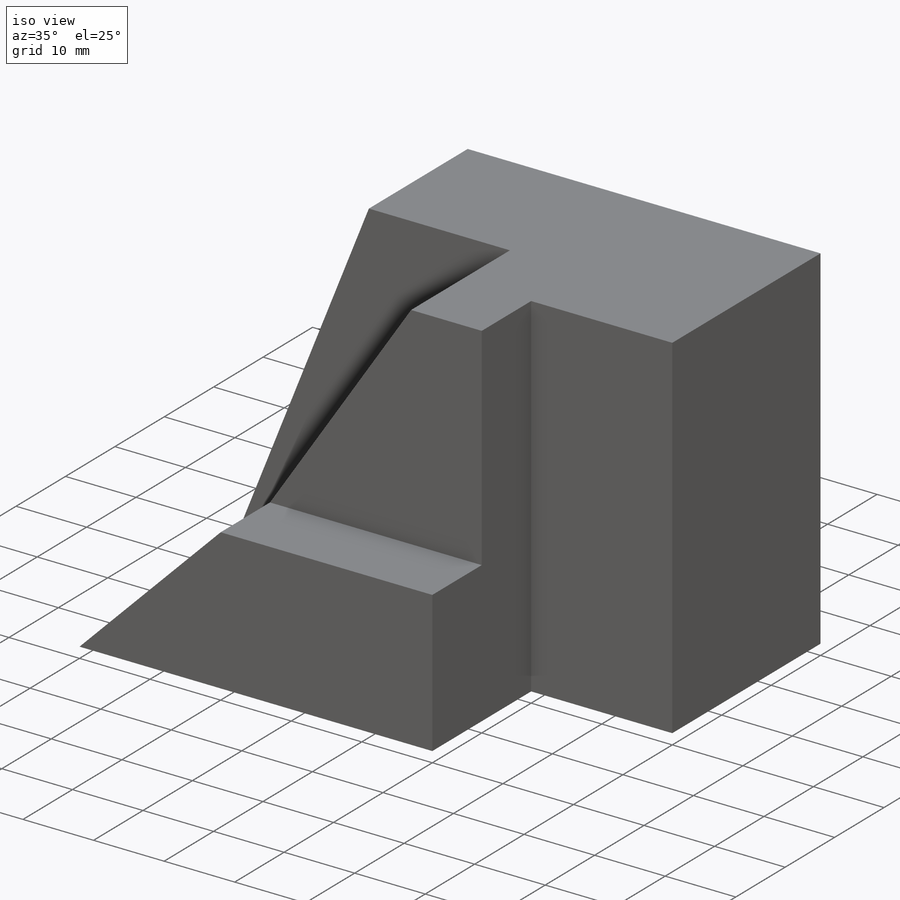
[diagram: iso view]
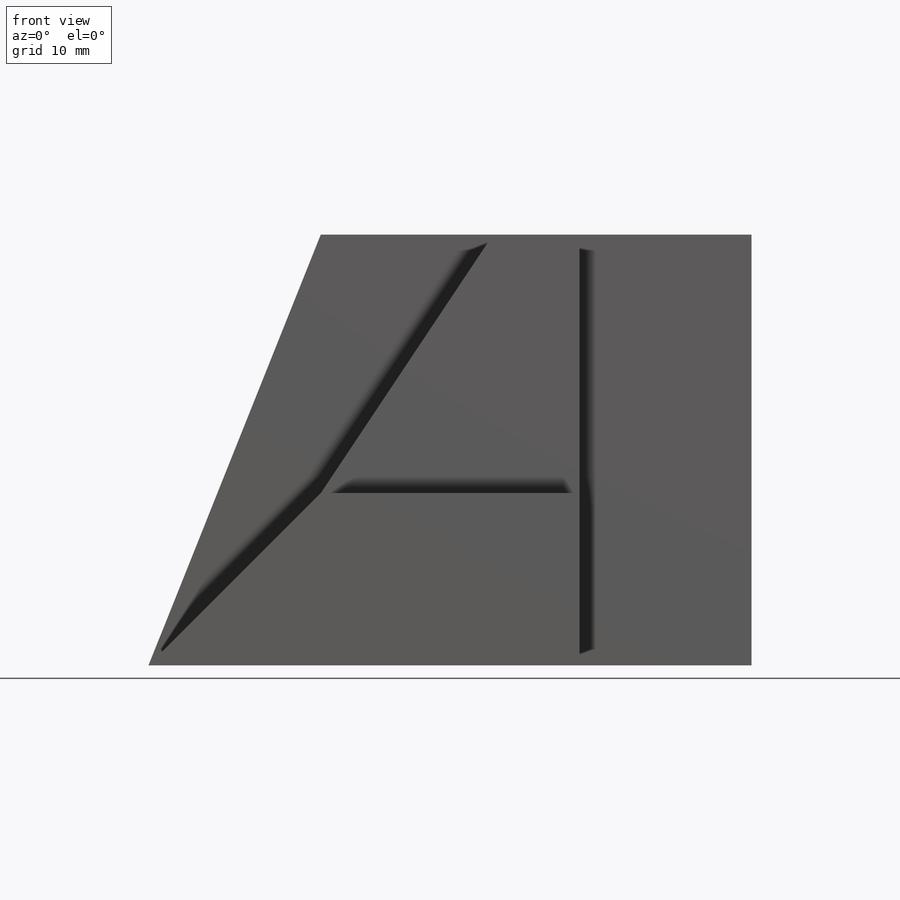
[diagram: front view]
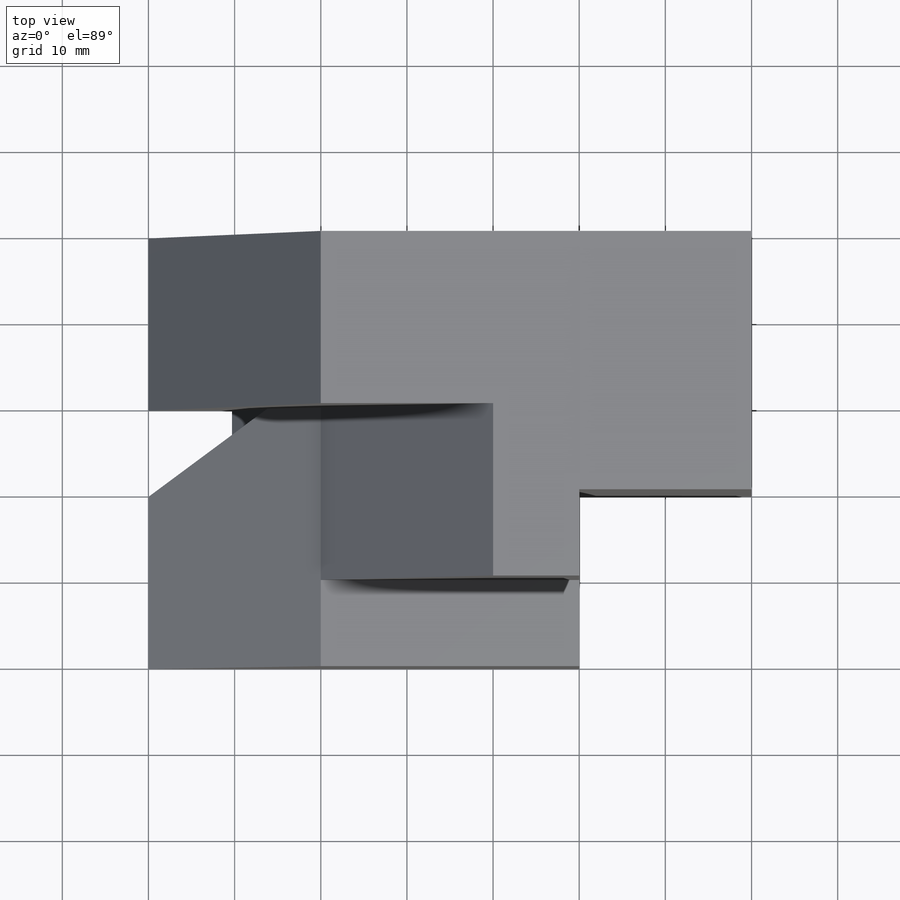
[diagram: top view]
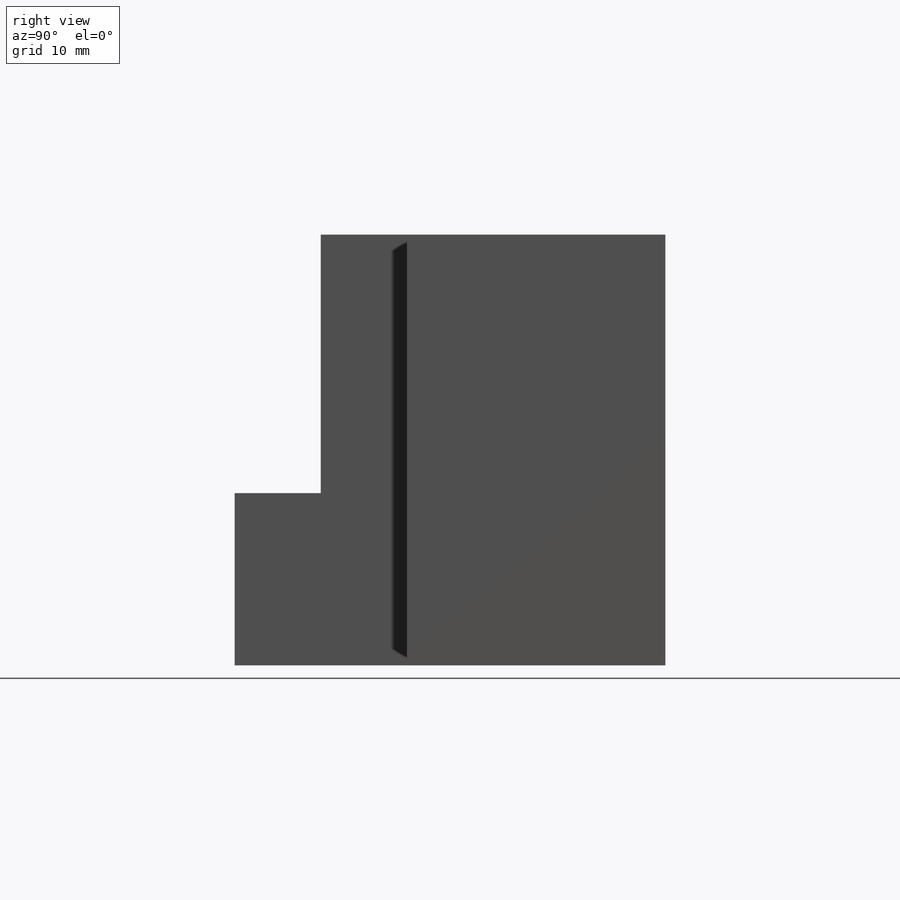
[diagram: right view]
SOLIDWORKS PART (.sldprt)
format: sldprt  version: not decoded by parser v0  size: 304,640 bytes
history: native  units: mm
features: sketch x14, cut_extrude x11, extrude x3, material x1, plane x1 (+13 scaffold rows collapsed)
feature tree (43):
  scaffold x13  (default folders/planes/origin — collapsed)
  material  "Material <not specified>"
  sketch  "Sketch1"  dims[c1.D1=~62.69285mm c1.D2=~85.471925mm c2.D1=70.0mm c2.D2=50.0mm]
  extrude  "Boss-Extrude1"  Depth=50mm
  sketch  "Sketch2"  dims[D1=20.0mm]
  cut_extrude  "Cut-Extrude1"  Depth=50mm
  sketch  "Sketch3"  dims[c1.D1=~29.805159mm c1.D2=~12.682404mm c2.D1=10.0mm c2.D2=30.0mm]
  cut_extrude  "Cut-Extrude2"  Depth=121mm
  sketch  "Sketch4"  dims[c1.D1=~24.316726mm c1.D2=~28.565243mm c2.D1=20.0mm c2.D2=20.0mm]
  cut_extrude  "Cut-Extrude3"  Depth=121mm
  sketch  "Sketch5"  dims[D1=20.0mm D2=10.0mm D3=50.0mm D4=20.0mm]
  cut_extrude  "Cut-Extrude8"  Depth=30mm
  sketch  "Sketch10"  dims[D1=30.0mm D2=40.0mm D3=10.0mm D4=30.0mm]
  cut_extrude  "Cut-Extrude9"  Depth=0.0001mm
  sketch  "Sketch11"  dims[D1=2.0mm]
  extrude  "Boss-Extrude8"  Depth=0.0001mm
  plane  "Plane1"  Offset=50mm
  sketch  "Sketch12"  dims[D1=20.0mm D2=20.0mm]
  cut_extrude  "Cut-Extrude10"  Depth=0.0001mm
  sketch  "Sketch14"  dims[D1=20.0mm]
  cut_extrude  "Cut-Extrude11"  Depth=0.001mm
  sketch  "Sketch15"  dims[D1=30.0mm]
  cut_extrude  "Cut-Extrude12"  Depth=0.001mm
  sketch  "Sketch16"  dims[D1=~17.948216mm]
  cut_extrude  "Cut-Extrude13"  Depth=9.001mm
  sketch  "Sketch17"  dims[D1=30.0mm]
  extrude  "Boss-Extrude14"  Depth=0.0002mm
  sketch  "Sketch18"  dims[c1.D1=~28.284271mm c1.D2=~30.380624mm c2.D1=30.0mm c2.D2=~28.284271mm]
  cut_extrude  "Cut-Extrude17"  Depth=23.0002mm
  sketch  "Sketch19"  dims[D1=5.0mm]
  cut_extrude  "Cut-Extrude18"  Depth=0.0001mm
decode coverage: 28 of 28 modeling features carry decoded parameters
note: ~ marks probable driven/reference dimensions
note: suppression state not decoded; provenance and decode notes live in map.json
